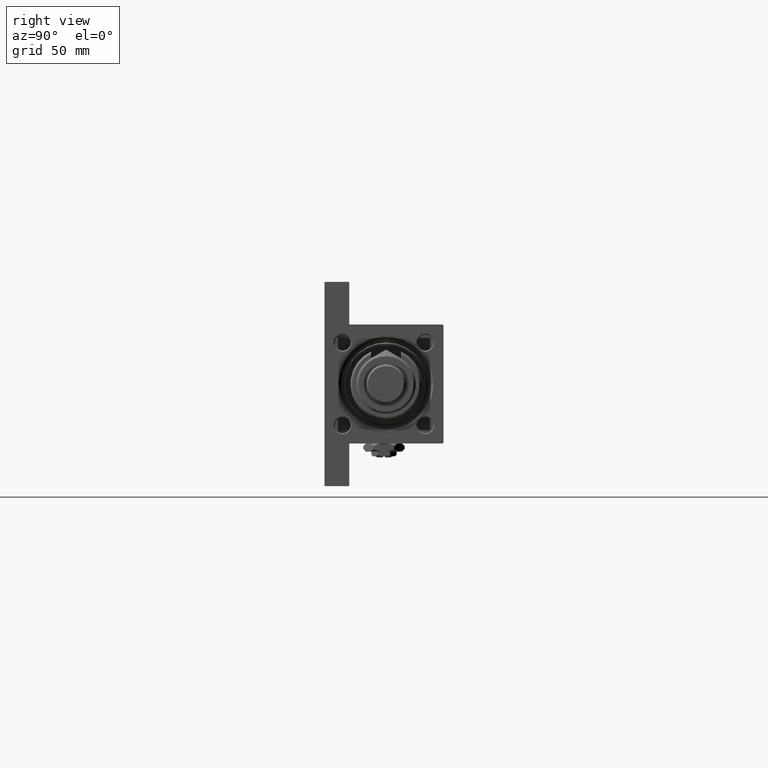
[diagram: clean part render]
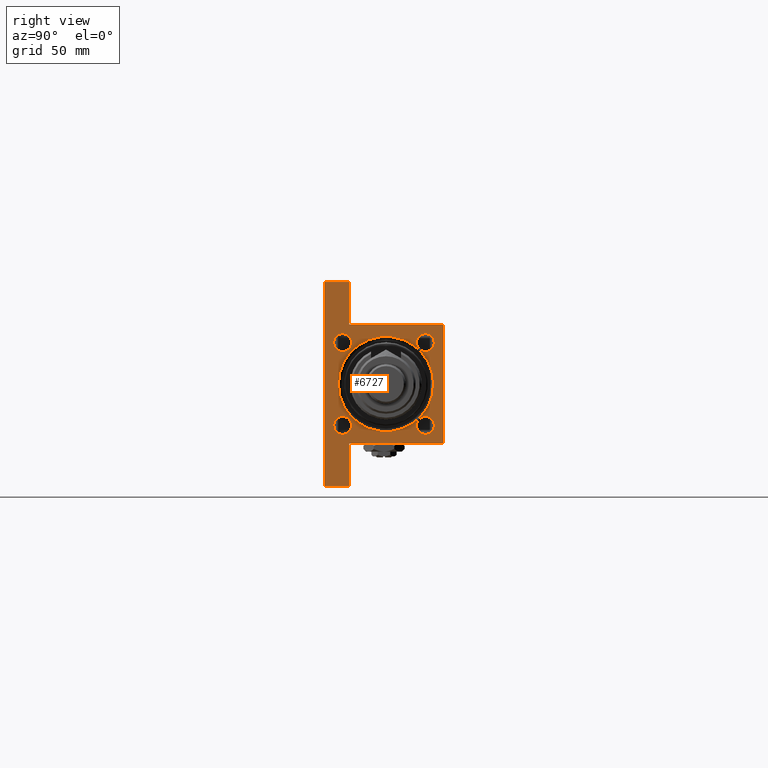
[diagram: same view with one face highlighted and labeled with its STEP entity id]
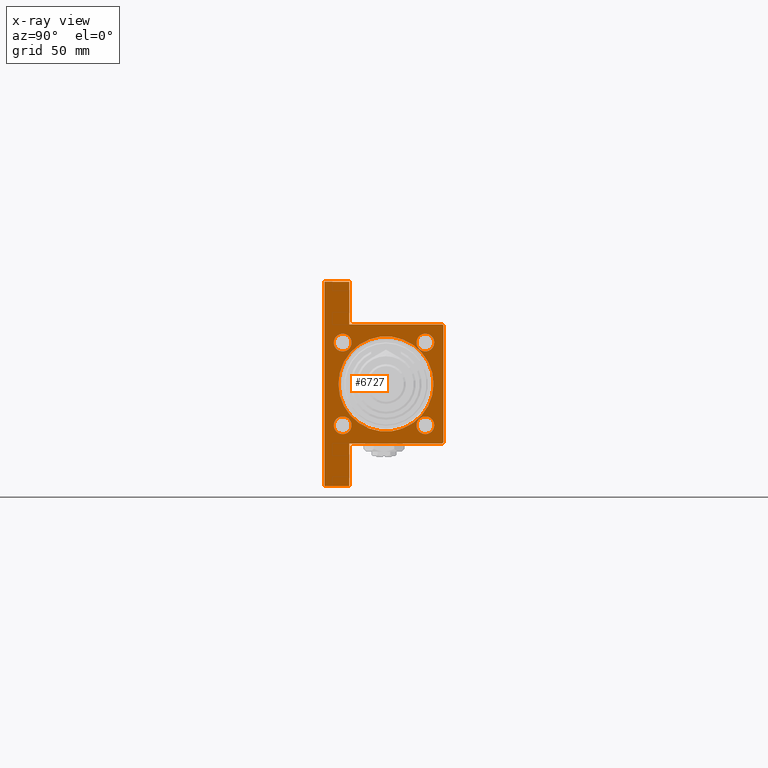
[diagram: x-ray of the same camera — body ghosted, the highlighted face saturated]
A machine part, right view. The second image highlights one B-rep face of the part: STEP entity #6727.
The next image is the same camera in x-ray: the body ghosted, the highlighted face saturated — about 0% of this face is hidden behind the body in this view.
In plain terms, the highlighted planar face has unit normal (-1, 0, -0).
Its self-contained STEP definition (entity closure, byte-faithful):
#114 = DIRECTION ( 'NONE',  ( -0.000000000000000000, 0.000000000000000000, 1.000000000000000000 ) ) ;
#450 = CARTESIAN_POINT ( 'NONE',  ( 228.0000000000000000, 30.00000000000000000, 30.00000000000000000 ) ) ;
#736 = EDGE_CURVE ( 'NONE', #48563, #53545, #43481, .T. ) ;
#891 = VERTEX_POINT ( 'NONE', #15037 ) ;
#976 = CIRCLE ( 'NONE', #3607, 4.500000000000003553 ) ;
#1362 = VECTOR ( 'NONE', #19500, 1000.000000000000000 ) ;
#1658 = CIRCLE ( 'NONE', #53641, 23.99999999999999645 ) ;
#1849 = DIRECTION ( 'NONE',  ( 0.000000000000000000, 0.000000000000000000, -1.000000000000000000 ) ) ;
#2393 = CARTESIAN_POINT ( 'NONE',  ( 228.0000000000000284, 51.49999999999996447, -17.49999999999999645 ) ) ;
#2624 = DIRECTION ( 'NONE',  ( 0.000000000000000000, 0.000000000000000000, 1.000000000000000000 ) ) ;
#3369 = ORIENTED_EDGE ( 'NONE', *, *, #3978, .T. ) ;
#3546 = DIRECTION ( 'NONE',  ( 0.000000000000000000, 0.000000000000000000, 1.000000000000000000 ) ) ;
#3607 = AXIS2_PLACEMENT_3D ( 'NONE', #32015, #48262, #32818 ) ;
#3799 = LINE ( 'NONE', #24691, #48478 ) ;
#3978 = EDGE_CURVE ( 'NONE', #891, #48563, #21539, .T. ) ;
#4185 = PLANE ( 'NONE',  #41493 ) ;
#4316 = LINE ( 'NONE', #21928, #19877 ) ;
#5553 = CARTESIAN_POINT ( 'NONE',  ( 228.0000000000000000, -20.85000000000000142, -25.35000000000000497 ) ) ;
#5825 = DIRECTION ( 'NONE',  ( 0.000000000000000000, 0.000000000000000000, -1.000000000000000000 ) ) ;
#6319 = DIRECTION ( 'NONE',  ( -0.000000000000000000, -1.000000000000000000, -0.000000000000000000 ) ) ;
#6482 = CARTESIAN_POINT ( 'NONE',  ( 228.0000000000000000, -29.50000000000000000, 29.99999999999999289 ) ) ;
#6491 = DIRECTION ( 'NONE',  ( -1.000000000000000000, 0.000000000000000000, -0.000000000000000000 ) ) ;
#6727 = ADVANCED_FACE ( 'NONE', ( #21538, #45370, #8255, #45905, #24814, #41328 ), #4185, .F. ) ;
#7435 = CARTESIAN_POINT ( 'NONE',  ( 228.0000000000000284, -51.50000000000000711, -29.99999999999999645 ) ) ;
#8009 = AXIS2_PLACEMENT_3D ( 'NONE', #18256, #18517, #13638 ) ;
#8111 = EDGE_CURVE ( 'NONE', #27701, #36809, #52672, .T. ) ;
#8255 = FACE_BOUND ( 'NONE', #46461, .T. ) ;
#8280 = ORIENTED_EDGE ( 'NONE', *, *, #42277, .T. ) ;
#8493 = ORIENTED_EDGE ( 'NONE', *, *, #31390, .T. ) ;
#8759 = CARTESIAN_POINT ( 'NONE',  ( 228.0000000000000284, 29.99999999999997513, -17.49999999999999645 ) ) ;
#9237 = VECTOR ( 'NONE', #36431, 1000.000000000000000 ) ;
#9435 = VERTEX_POINT ( 'NONE', #28000 ) ;
#9780 = EDGE_CURVE ( 'NONE', #52114, #35761, #1658, .T. ) ;
#10242 = DIRECTION ( 'NONE',  ( -1.000000000000000000, 0.000000000000000000, -0.000000000000000000 ) ) ;
#10283 = ORIENTED_EDGE ( 'NONE', *, *, #39596, .T. ) ;
#10471 = EDGE_CURVE ( 'NONE', #13423, #15243, #4316, .T. ) ;
#10742 = CARTESIAN_POINT ( 'NONE',  ( 228.0000000000000000, -20.84999999999999432, 20.85000000000000142 ) ) ;
#10899 = ORIENTED_EDGE ( 'NONE', *, *, #736, .T. ) ;
#11398 = DIRECTION ( 'NONE',  ( -1.000000000000000000, 0.000000000000000000, -0.000000000000000000 ) ) ;
#11891 = CIRCLE ( 'NONE', #14493, 4.500000000000003553 ) ;
#12217 = EDGE_CURVE ( 'NONE', #46009, #9435, #17440, .T. ) ;
#12542 = CIRCLE ( 'NONE', #42003, 4.500000000000003553 ) ;
#12928 = DIRECTION ( 'NONE',  ( 0.000000000000000000, 0.000000000000000000, -1.000000000000000000 ) ) ;
#13423 = VERTEX_POINT ( 'NONE', #22233 ) ;
#13638 = DIRECTION ( 'NONE',  ( 0.000000000000000000, 0.000000000000000000, 1.000000000000000000 ) ) ;
#14440 = VERTEX_POINT ( 'NONE', #48215 ) ;
#14493 = AXIS2_PLACEMENT_3D ( 'NONE', #48039, #44233, #35047 ) ;
#14734 = CARTESIAN_POINT ( 'NONE',  ( 228.0000000000000284, 51.49999999999996447, -17.49999999999999645 ) ) ;
#15003 = DIRECTION ( 'NONE',  ( -1.000000000000000000, 0.000000000000000000, -0.000000000000000000 ) ) ;
#15037 = CARTESIAN_POINT ( 'NONE',  ( 228.0000000000000000, -30.00000000000000000, -17.49999999999998224 ) ) ;
#15243 = VERTEX_POINT ( 'NONE', #6482 ) ;
#15885 = VECTOR ( 'NONE', #29523, 1000.000000000000000 ) ;
#16163 = EDGE_CURVE ( 'NONE', #35761, #52114, #27240, .T. ) ;
#16502 = CARTESIAN_POINT ( 'NONE',  ( 228.0000000000000000, -20.84999999999999432, 16.34999999999999787 ) ) ;
#16962 = CARTESIAN_POINT ( 'NONE',  ( 228.0000000000000000, 20.84999999999999787, -25.35000000000000497 ) ) ;
#17440 = CIRCLE ( 'NONE', #19190, 4.500000000000003553 ) ;
#17882 = CARTESIAN_POINT ( 'NONE',  ( 228.0000000000000284, -51.50000000000000711, -17.49999999999999645 ) ) ;
#18256 = CARTESIAN_POINT ( 'NONE',  ( 228.0000000000000000, 20.84999999999999787, -20.85000000000000142 ) ) ;
#18517 = DIRECTION ( 'NONE',  ( -1.000000000000000000, 0.000000000000000000, -0.000000000000000000 ) ) ;
#18627 = DIRECTION ( 'NONE',  ( -1.000000000000000000, 0.000000000000000000, -0.000000000000000000 ) ) ;
#18870 = VECTOR ( 'NONE', #19069, 1000.000000000000000 ) ;
#19033 = EDGE_LOOP ( 'NONE', ( #46923, #10283, #44076, #23424, #34128, #3369, #10899, #46543, #26172, #8493 ) ) ;
#19069 = DIRECTION ( 'NONE',  ( 0.000000000000000000, -1.000000000000000000, 0.000000000000000000 ) ) ;
#19096 = AXIS2_PLACEMENT_3D ( 'NONE', #27030, #34875, #35147 ) ;
#19190 = AXIS2_PLACEMENT_3D ( 'NONE', #44192, #39605, #3546 ) ;
#19500 = DIRECTION ( 'NONE',  ( 0.000000000000000000, -1.000000000000000000, -1.156482317317871478E-16 ) ) ;
#19866 = VERTEX_POINT ( 'NONE', #29032 ) ;
#19877 = VECTOR ( 'NONE', #50392, 1000.000000000000000 ) ;
#19908 = CARTESIAN_POINT ( 'NONE',  ( 228.0000000000000000, -30.00000000000000000, 29.50000000000001776 ) ) ;
#20095 = VERTEX_POINT ( 'NONE', #16962 ) ;
#20735 = CARTESIAN_POINT ( 'NONE',  ( 228.0000000000000000, 0.000000000000000000, 0.000000000000000000 ) ) ;
#21382 = EDGE_CURVE ( 'NONE', #19866, #52373, #12542, .T. ) ;
#21538 = FACE_BOUND ( 'NONE', #36831, .T. ) ;
#21539 = LINE ( 'NONE', #38057, #52643 ) ;
#21928 = CARTESIAN_POINT ( 'NONE',  ( 228.0000000000000000, 30.00000000000000000, 30.00000000000000000 ) ) ;
#22016 = CARTESIAN_POINT ( 'NONE',  ( 228.0000000000000000, 20.84999999999999787, 20.85000000000000142 ) ) ;
#22233 = CARTESIAN_POINT ( 'NONE',  ( 228.0000000000000000, 29.50000000000000000, 30.00000000000000000 ) ) ;
#22708 = CARTESIAN_POINT ( 'NONE',  ( 228.0000000000000000, 0.000000000000000000, 1.000000000000007772 ) ) ;
#22960 = EDGE_CURVE ( 'NONE', #51956, #53545, #31160, .T. ) ;
#23183 = EDGE_CURVE ( 'NONE', #9435, #46009, #36006, .T. ) ;
#23269 = LINE ( 'NONE', #2393, #30939 ) ;
#23424 = ORIENTED_EDGE ( 'NONE', *, *, #25435, .T. ) ;
#23972 = LINE ( 'NONE', #19908, #9237 ) ;
#24320 = ORIENTED_EDGE ( 'NONE', *, *, #21382, .T. ) ;
#24691 = CARTESIAN_POINT ( 'NONE',  ( 228.0000000000000000, 29.50000000000000000, 30.00000000000000000 ) ) ;
#24814 = FACE_BOUND ( 'NONE', #44456, .T. ) ;
#25435 = EDGE_CURVE ( 'NONE', #15243, #48089, #23972, .T. ) ;
#25989 = CARTESIAN_POINT ( 'NONE',  ( 228.0000000000000284, 51.49999999999996447, -29.99999999999999645 ) ) ;
#26172 = ORIENTED_EDGE ( 'NONE', *, *, #30911, .F. ) ;
#26206 = LINE ( 'NONE', #450, #36438 ) ;
#27030 = CARTESIAN_POINT ( 'NONE',  ( 228.0000000000000000, 20.84999999999999787, 20.85000000000000142 ) ) ;
#27240 = CIRCLE ( 'NONE', #29840, 23.99999999999999645 ) ;
#27257 = ORIENTED_EDGE ( 'NONE', *, *, #23183, .T. ) ;
#27306 = ORIENTED_EDGE ( 'NONE', *, *, #16163, .T. ) ;
#27701 = VERTEX_POINT ( 'NONE', #41473 ) ;
#28000 = CARTESIAN_POINT ( 'NONE',  ( 228.0000000000000000, -20.84999999999999432, 25.35000000000000497 ) ) ;
#29020 = DIRECTION ( 'NONE',  ( 0.000000000000000000, -0.7071067811865474617, 0.7071067811865474617 ) ) ;
#29032 = CARTESIAN_POINT ( 'NONE',  ( 228.0000000000000000, -20.85000000000000142, -16.34999999999999787 ) ) ;
#29189 = EDGE_LOOP ( 'NONE', ( #8280, #45962 ) ) ;
#29523 = DIRECTION ( 'NONE',  ( 0.000000000000000000, 0.000000000000000000, -1.000000000000000000 ) ) ;
#29840 = AXIS2_PLACEMENT_3D ( 'NONE', #51769, #6491, #52045 ) ;
#30347 = CARTESIAN_POINT ( 'NONE',  ( 228.0000000000000284, 51.49999999999996447, -17.49999999999999645 ) ) ;
#30371 = EDGE_CURVE ( 'NONE', #52373, #19866, #11891, .T. ) ;
#30875 = CARTESIAN_POINT ( 'NONE',  ( 228.0000000000000000, 0.000000000000000000, -22.99999999999998934 ) ) ;
#30911 = EDGE_CURVE ( 'NONE', #38613, #51956, #23269, .T. ) ;
#30939 = VECTOR ( 'NONE', #1849, 1000.000000000000000 ) ;
#31160 = LINE ( 'NONE', #52290, #1362 ) ;
#31390 = EDGE_CURVE ( 'NONE', #38613, #51364, #35869, .T. ) ;
#31487 = DIRECTION ( 'NONE',  ( 0.000000000000000000, 0.000000000000000000, 1.000000000000000000 ) ) ;
#32015 = CARTESIAN_POINT ( 'NONE',  ( 228.0000000000000000, 20.84999999999999787, -20.85000000000000142 ) ) ;
#32433 = ORIENTED_EDGE ( 'NONE', *, *, #40137, .T. ) ;
#32818 = DIRECTION ( 'NONE',  ( 0.000000000000000000, 0.000000000000000000, 1.000000000000000000 ) ) ;
#34128 = ORIENTED_EDGE ( 'NONE', *, *, #46176, .T. ) ;
#34480 = AXIS2_PLACEMENT_3D ( 'NONE', #22016, #11398, #31487 ) ;
#34833 = CARTESIAN_POINT ( 'NONE',  ( 228.0000000000000284, -51.50000000000000711, -17.49999999999999645 ) ) ;
#34875 = DIRECTION ( 'NONE',  ( -1.000000000000000000, 0.000000000000000000, -0.000000000000000000 ) ) ;
#35047 = DIRECTION ( 'NONE',  ( 0.000000000000000000, 0.000000000000000000, 1.000000000000000000 ) ) ;
#35147 = DIRECTION ( 'NONE',  ( 0.000000000000000000, 0.000000000000000000, 1.000000000000000000 ) ) ;
#35761 = VERTEX_POINT ( 'NONE', #30875 ) ;
#35869 = LINE ( 'NONE', #14734, #18870 ) ;
#35964 = ORIENTED_EDGE ( 'NONE', *, *, #12217, .T. ) ;
#36006 = CIRCLE ( 'NONE', #53346, 4.500000000000003553 ) ;
#36431 = DIRECTION ( 'NONE',  ( -0.000000000000000000, -0.7071067811865671127, -0.7071067811865279218 ) ) ;
#36438 = VECTOR ( 'NONE', #12928, 1000.000000000000000 ) ;
#36809 = VERTEX_POINT ( 'NONE', #47659 ) ;
#36831 = EDGE_LOOP ( 'NONE', ( #32433, #51453 ) ) ;
#37257 = DIRECTION ( 'NONE',  ( -1.000000000000000000, 0.000000000000000000, -0.000000000000000000 ) ) ;
#37418 = EDGE_LOOP ( 'NONE', ( #35964, #27257 ) ) ;
#37969 = VERTEX_POINT ( 'NONE', #46771 ) ;
#38057 = CARTESIAN_POINT ( 'NONE',  ( 228.0000000000000284, -51.50000000000000711, -17.49999999999999645 ) ) ;
#38563 = ORIENTED_EDGE ( 'NONE', *, *, #30371, .T. ) ;
#38613 = VERTEX_POINT ( 'NONE', #30347 ) ;
#38722 = ORIENTED_EDGE ( 'NONE', *, *, #9780, .T. ) ;
#39386 = DIRECTION ( 'NONE',  ( 0.000000000000000000, 0.000000000000000000, 1.000000000000000000 ) ) ;
#39596 = EDGE_CURVE ( 'NONE', #14440, #13423, #3799, .T. ) ;
#39605 = DIRECTION ( 'NONE',  ( -1.000000000000000000, 0.000000000000000000, -0.000000000000000000 ) ) ;
#40137 = EDGE_CURVE ( 'NONE', #36809, #27701, #52873, .T. ) ;
#40748 = EDGE_CURVE ( 'NONE', #14440, #51364, #26206, .T. ) ;
#41121 = CARTESIAN_POINT ( 'NONE',  ( 228.0000000000000000, -30.00000000000000000, 29.50000000000001776 ) ) ;
#41328 = FACE_OUTER_BOUND ( 'NONE', #19033, .T. ) ;
#41473 = CARTESIAN_POINT ( 'NONE',  ( 228.0000000000000000, 20.84999999999999787, 25.35000000000000497 ) ) ;
#41493 = AXIS2_PLACEMENT_3D ( 'NONE', #20735, #37257, #114 ) ;
#42003 = AXIS2_PLACEMENT_3D ( 'NONE', #43975, #15003, #39386 ) ;
#42235 = LINE ( 'NONE', #46549, #15885 ) ;
#42277 = EDGE_CURVE ( 'NONE', #20095, #37969, #976, .T. ) ;
#42508 = DIRECTION ( 'NONE',  ( 0.000000000000000000, 0.000000000000000000, 1.000000000000000000 ) ) ;
#42985 = VECTOR ( 'NONE', #5825, 1000.000000000000000 ) ;
#43481 = LINE ( 'NONE', #34833, #42985 ) ;
#43975 = CARTESIAN_POINT ( 'NONE',  ( 228.0000000000000000, -20.85000000000000142, -20.85000000000000142 ) ) ;
#44076 = ORIENTED_EDGE ( 'NONE', *, *, #10471, .T. ) ;
#44192 = CARTESIAN_POINT ( 'NONE',  ( 228.0000000000000000, -20.84999999999999432, 20.85000000000000142 ) ) ;
#44222 = EDGE_CURVE ( 'NONE', #37969, #20095, #51280, .T. ) ;
#44233 = DIRECTION ( 'NONE',  ( -1.000000000000000000, 0.000000000000000000, -0.000000000000000000 ) ) ;
#44456 = EDGE_LOOP ( 'NONE', ( #27306, #38722 ) ) ;
#45370 = FACE_BOUND ( 'NONE', #37418, .T. ) ;
#45905 = FACE_BOUND ( 'NONE', #29189, .T. ) ;
#45962 = ORIENTED_EDGE ( 'NONE', *, *, #44222, .T. ) ;
#46009 = VERTEX_POINT ( 'NONE', #16502 ) ;
#46176 = EDGE_CURVE ( 'NONE', #48089, #891, #42235, .T. ) ;
#46461 = EDGE_LOOP ( 'NONE', ( #38563, #24320 ) ) ;
#46543 = ORIENTED_EDGE ( 'NONE', *, *, #22960, .F. ) ;
#46549 = CARTESIAN_POINT ( 'NONE',  ( 228.0000000000000000, -30.00000000000000000, 29.99999999999999289 ) ) ;
#46771 = CARTESIAN_POINT ( 'NONE',  ( 228.0000000000000000, 20.84999999999999787, -16.34999999999999787 ) ) ;
#46923 = ORIENTED_EDGE ( 'NONE', *, *, #40748, .F. ) ;
#47659 = CARTESIAN_POINT ( 'NONE',  ( 228.0000000000000000, 20.84999999999999787, 16.34999999999999787 ) ) ;
#48039 = CARTESIAN_POINT ( 'NONE',  ( 228.0000000000000000, -20.85000000000000142, -20.85000000000000142 ) ) ;
#48089 = VERTEX_POINT ( 'NONE', #41121 ) ;
#48215 = CARTESIAN_POINT ( 'NONE',  ( 228.0000000000000000, 30.00000000000000000, 29.50000000000000000 ) ) ;
#48262 = DIRECTION ( 'NONE',  ( -1.000000000000000000, 0.000000000000000000, -0.000000000000000000 ) ) ;
#48478 = VECTOR ( 'NONE', #29020, 1000.000000000000114 ) ;
#48563 = VERTEX_POINT ( 'NONE', #17882 ) ;
#50392 = DIRECTION ( 'NONE',  ( 0.000000000000000000, -1.000000000000000000, -1.156482317317871478E-16 ) ) ;
#51169 = CARTESIAN_POINT ( 'NONE',  ( 228.0000000000000000, 2.939152317953647500E-15, 25.00000000000000355 ) ) ;
#51280 = CIRCLE ( 'NONE', #8009, 4.500000000000003553 ) ;
#51364 = VERTEX_POINT ( 'NONE', #8759 ) ;
#51453 = ORIENTED_EDGE ( 'NONE', *, *, #8111, .T. ) ;
#51769 = CARTESIAN_POINT ( 'NONE',  ( 228.0000000000000000, 0.000000000000000000, 1.000000000000007772 ) ) ;
#51956 = VERTEX_POINT ( 'NONE', #25989 ) ;
#52045 = DIRECTION ( 'NONE',  ( 0.000000000000000000, 0.000000000000000000, 1.000000000000000000 ) ) ;
#52114 = VERTEX_POINT ( 'NONE', #51169 ) ;
#52290 = CARTESIAN_POINT ( 'NONE',  ( 228.0000000000000000, 30.00000000000000000, -29.99999999999999289 ) ) ;
#52373 = VERTEX_POINT ( 'NONE', #5553 ) ;
#52643 = VECTOR ( 'NONE', #6319, 1000.000000000000000 ) ;
#52672 = CIRCLE ( 'NONE', #34480, 4.500000000000003553 ) ;
#52873 = CIRCLE ( 'NONE', #19096, 4.500000000000003553 ) ;
#53346 = AXIS2_PLACEMENT_3D ( 'NONE', #10742, #18627, #2624 ) ;
#53545 = VERTEX_POINT ( 'NONE', #7435 ) ;
#53641 = AXIS2_PLACEMENT_3D ( 'NONE', #22708, #10242, #42508 ) ;